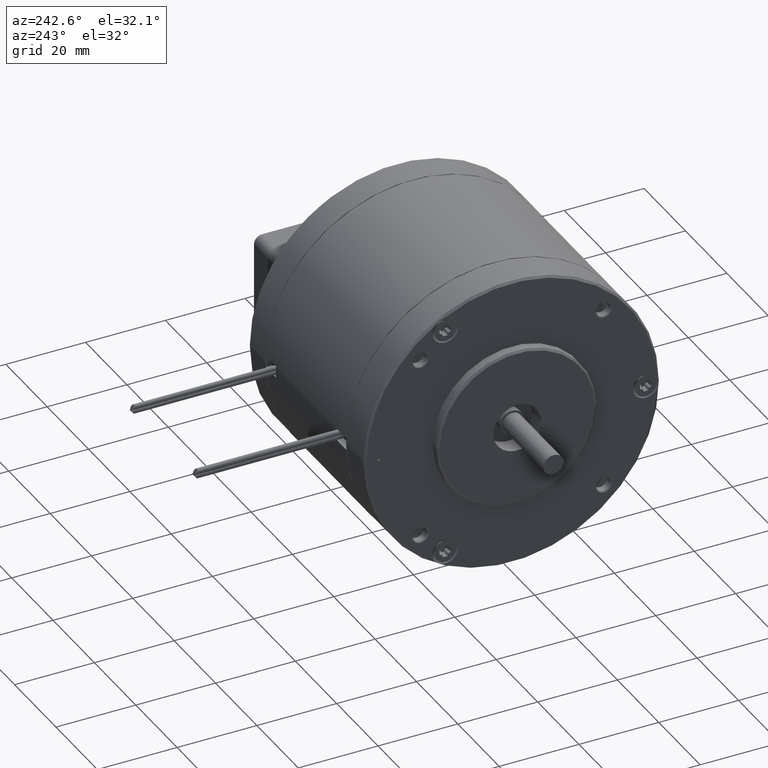
[diagram: clean part render]
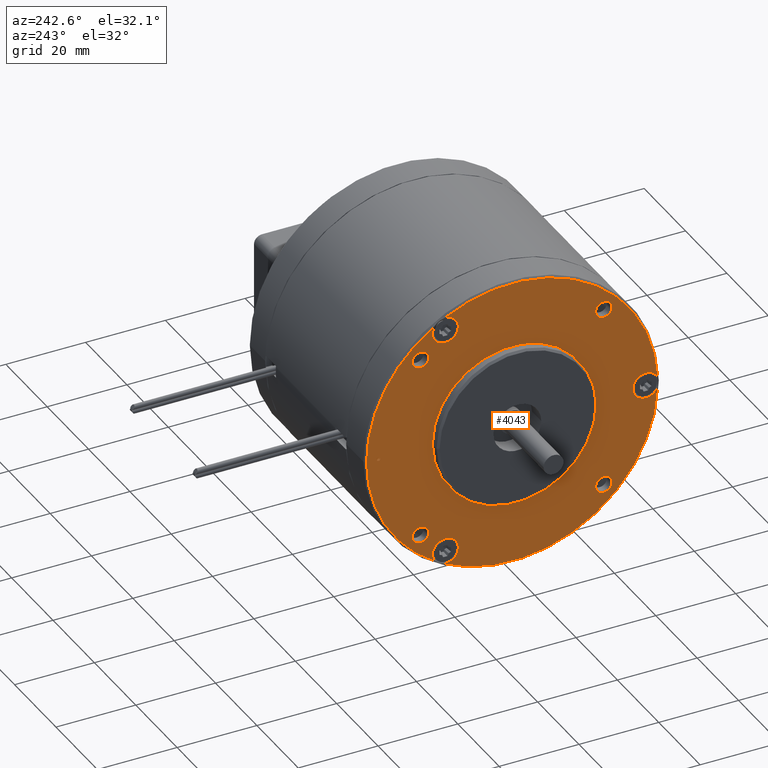
[diagram: same view with one face highlighted and labeled with its STEP entity id]
A machine part, auxiliary view. The second image highlights one B-rep face of the part: STEP entity #4043.
In plain terms, the highlighted planar face has unit normal (1, 0, 0).
Its self-contained STEP definition (entity closure, byte-faithful):
#3319=CARTESIAN_POINT('',(8.9E0,1.115616388332E-14,0.E0));
#3320=DIRECTION('',(-1.E0,0.E0,0.E0));
#3321=DIRECTION('',(0.E0,1.E0,0.E0));
#3322=AXIS2_PLACEMENT_3D('',#3319,#3320,#3321);
#3324=CARTESIAN_POINT('',(8.9E0,1.115616388332E-14,0.E0));
#3325=DIRECTION('',(1.E0,0.E0,0.E0));
#3326=DIRECTION('',(0.E0,1.E0,0.E0));
#3327=AXIS2_PLACEMENT_3D('',#3324,#3325,#3326);
#3329=CARTESIAN_POINT('',(8.9E0,-1.675E1,2.901185102678E1));
#3330=DIRECTION('',(1.E0,0.E0,0.E0));
#3331=DIRECTION('',(0.E0,5.E-1,-8.660254037844E-1));
#3332=AXIS2_PLACEMENT_3D('',#3329,#3330,#3331);
#3334=CARTESIAN_POINT('',(8.9E0,3.100031895683E-13,4.884981308351E-13));
#3335=DIRECTION('',(-1.E0,0.E0,0.E0));
#3336=DIRECTION('',(0.E0,-4.687273212516E-1,8.833429109425E-1));
#3337=AXIS2_PLACEMENT_3D('',#3334,#3335,#3336);
#3339=CARTESIAN_POINT('',(8.9E0,3.35E1,0.E0));
#3340=DIRECTION('',(1.E0,0.E0,0.E0));
#3341=DIRECTION('',(0.E0,9.158999603613E-1,4.014066050903E-1));
#3342=AXIS2_PLACEMENT_3D('',#3339,#3340,#3341);
#3344=CARTESIAN_POINT('',(8.9E0,3.35E1,0.E0));
#3345=DIRECTION('',(1.E0,0.E0,0.E0));
#3346=DIRECTION('',(0.E0,-1.E0,0.E0));
#3347=AXIS2_PLACEMENT_3D('',#3344,#3345,#3346);
#3349=CARTESIAN_POINT('',(8.9E0,-2.193511485730E-13,-2.930988785010E-14));
#3350=DIRECTION('',(-1.E0,0.E0,0.E0));
#3351=DIRECTION('',(0.E0,9.993610617549E-1,-3.574168781955E-2));
#3352=AXIS2_PLACEMENT_3D('',#3349,#3350,#3351);
#3354=CARTESIAN_POINT('',(8.9E0,-1.675E1,-2.901185102678E1));
#3355=DIRECTION('',(1.E0,0.E0,0.E0));
#3356=DIRECTION('',(0.E0,-1.103216629256E-1,-9.938959355432E-1));
#3357=AXIS2_PLACEMENT_3D('',#3354,#3355,#3356);
#3359=CARTESIAN_POINT('',(8.9E0,-1.675E1,-2.901185102678E1));
#3360=DIRECTION('',(1.E0,0.E0,0.E0));
#3361=DIRECTION('',(0.E0,5.E-1,8.660254037844E-1));
#3362=AXIS2_PLACEMENT_3D('',#3359,#3360,#3361);
#3364=CARTESIAN_POINT('',(8.9E0,-2.193511485730E-13,-2.930988785010E-14));
#3365=DIRECTION('',(-1.E0,0.E0,0.E0));
#3366=DIRECTION('',(0.E0,-5.306337405033E-1,-8.476012231229E-1));
#3367=AXIS2_PLACEMENT_3D('',#3364,#3365,#3366);
#3369=CARTESIAN_POINT('',(8.9E0,3.100031895683E-13,4.884981308351E-13));
#3370=DIRECTION('',(-1.E0,0.E0,0.E0));
#3371=DIRECTION('',(0.E0,-1.E0,-1.370513900831E-14));
#3372=AXIS2_PLACEMENT_3D('',#3369,#3370,#3371);
#3374=CARTESIAN_POINT('',(8.9E0,-1.675E1,2.901185102678E1));
#3375=DIRECTION('',(1.E0,0.E0,0.E0));
#3376=DIRECTION('',(0.E0,-8.055782974357E-1,5.924893304529E-1));
#3377=AXIS2_PLACEMENT_3D('',#3374,#3375,#3376);
#3379=CARTESIAN_POINT('',(8.9E0,2.298097038856E1,-2.298097038856E1));
#3380=DIRECTION('',(1.E0,0.E0,0.E0));
#3381=DIRECTION('',(0.E0,-1.E0,0.E0));
#3382=AXIS2_PLACEMENT_3D('',#3379,#3380,#3381);
#3384=CARTESIAN_POINT('',(8.9E0,2.298097038856E1,-2.298097038856E1));
#3385=DIRECTION('',(1.E0,0.E0,0.E0));
#3386=DIRECTION('',(0.E0,1.E0,0.E0));
#3387=AXIS2_PLACEMENT_3D('',#3384,#3385,#3386);
#3389=CARTESIAN_POINT('',(8.9E0,-2.298097038856E1,-2.298097038856E1));
#3390=DIRECTION('',(1.E0,0.E0,0.E0));
#3391=DIRECTION('',(0.E0,0.E0,1.E0));
#3392=AXIS2_PLACEMENT_3D('',#3389,#3390,#3391);
#3394=CARTESIAN_POINT('',(8.9E0,-2.298097038856E1,-2.298097038856E1));
#3395=DIRECTION('',(1.E0,0.E0,0.E0));
#3396=DIRECTION('',(0.E0,0.E0,-1.E0));
#3397=AXIS2_PLACEMENT_3D('',#3394,#3395,#3396);
#3399=CARTESIAN_POINT('',(8.9E0,-2.298097038856E1,2.298097038856E1));
#3400=DIRECTION('',(1.E0,0.E0,0.E0));
#3401=DIRECTION('',(0.E0,1.E0,0.E0));
#3402=AXIS2_PLACEMENT_3D('',#3399,#3400,#3401);
#3404=CARTESIAN_POINT('',(8.9E0,-2.298097038856E1,2.298097038856E1));
#3405=DIRECTION('',(1.E0,0.E0,0.E0));
#3406=DIRECTION('',(0.E0,-1.E0,0.E0));
#3407=AXIS2_PLACEMENT_3D('',#3404,#3405,#3406);
#3409=CARTESIAN_POINT('',(8.9E0,2.298097038856E1,2.298097038856E1));
#3410=DIRECTION('',(1.E0,0.E0,0.E0));
#3411=DIRECTION('',(0.E0,0.E0,-1.E0));
#3412=AXIS2_PLACEMENT_3D('',#3409,#3410,#3411);
#3414=CARTESIAN_POINT('',(8.9E0,2.298097038856E1,2.298097038856E1));
#3415=DIRECTION('',(1.E0,0.E0,0.E0));
#3416=DIRECTION('',(0.E0,0.E0,1.E0));
#3417=AXIS2_PLACEMENT_3D('',#3414,#3415,#3416);
#3419=CARTESIAN_POINT('',(8.9E0,-3.35E1,0.E0));
#3420=DIRECTION('',(1.E0,0.E0,0.E0));
#3421=DIRECTION('',(0.E0,-1.E0,0.E0));
#3422=AXIS2_PLACEMENT_3D('',#3419,#3420,#3421);
#3424=CARTESIAN_POINT('',(8.9E0,-3.35E1,0.E0));
#3425=DIRECTION('',(1.E0,0.E0,0.E0));
#3426=DIRECTION('',(0.E0,1.E0,0.E0));
#3427=AXIS2_PLACEMENT_3D('',#3424,#3425,#3426);
#3792=CARTESIAN_POINT('',(8.9E0,3.025E1,0.E0));
#3793=CARTESIAN_POINT('',(8.9E0,3.647667487117E1,-1.304571466544E0));
#3794=VERTEX_POINT('',#3792);
#3795=VERTEX_POINT('',#3793);
#3796=CARTESIAN_POINT('',(8.9E0,3.647667487117E1,1.304571466543E0));
#3797=VERTEX_POINT('',#3796);
#3804=CARTESIAN_POINT('',(8.9E0,-1.5125E1,-2.619726846448E1));
#3805=CARTESIAN_POINT('',(8.9E0,-1.936812946667E1,-3.093744135075E1));
#3806=VERTEX_POINT('',#3804);
#3807=VERTEX_POINT('',#3805);
#3808=CARTESIAN_POINT('',(8.9E0,-1.710854540451E1,-3.224201281729E1));
#3809=VERTEX_POINT('',#3808);
#3816=CARTESIAN_POINT('',(8.9E0,-1.5125E1,2.619726846448E1));
#3817=CARTESIAN_POINT('',(8.9E0,-1.710854540451E1,3.224201281729E1));
#3818=VERTEX_POINT('',#3816);
#3819=VERTEX_POINT('',#3817);
#3820=CARTESIAN_POINT('',(8.9E0,-1.936812946667E1,3.093744135075E1));
#3821=VERTEX_POINT('',#3820);
#3828=CARTESIAN_POINT('',(8.9E0,2.093097038856E1,-2.298097038856E1));
#3829=CARTESIAN_POINT('',(8.9E0,2.503097038856E1,-2.298097038856E1));
#3830=VERTEX_POINT('',#3828);
#3831=VERTEX_POINT('',#3829);
#3836=CARTESIAN_POINT('',(8.9E0,-2.298097038856E1,-2.093097038856E1));
#3837=CARTESIAN_POINT('',(8.9E0,-2.298097038856E1,-2.503097038856E1));
#3838=VERTEX_POINT('',#3836);
#3839=VERTEX_POINT('',#3837);
#3844=CARTESIAN_POINT('',(8.9E0,-2.093097038856E1,2.298097038856E1));
#3845=CARTESIAN_POINT('',(8.9E0,-2.503097038856E1,2.298097038856E1));
#3846=VERTEX_POINT('',#3844);
#3847=VERTEX_POINT('',#3845);
#3852=CARTESIAN_POINT('',(8.899998704969E0,-3.649999870479E1,
-1.253937830371E-9));
#3853=VERTEX_POINT('',#3852);
#3858=CARTESIAN_POINT('',(8.9E0,2.298097038856E1,2.093097038856E1));
#3859=CARTESIAN_POINT('',(8.9E0,2.298097038856E1,2.503097038856E1));
#3860=VERTEX_POINT('',#3858);
#3861=VERTEX_POINT('',#3859);
#3866=CARTESIAN_POINT('',(8.9E0,2.E1,0.E0));
#3867=CARTESIAN_POINT('',(8.9E0,-2.E1,0.E0));
#3868=VERTEX_POINT('',#3866);
#3869=VERTEX_POINT('',#3867);
#3878=CARTESIAN_POINT('',(8.9E0,-3.4E1,0.E0));
#3879=CARTESIAN_POINT('',(8.9E0,-3.3E1,0.E0));
#3880=VERTEX_POINT('',#3878);
#3881=VERTEX_POINT('',#3879);
#3983=CARTESIAN_POINT('',(8.9E0,1.115616388332E-14,0.E0));
#3984=DIRECTION('',(-1.E0,0.E0,0.E0));
#3985=DIRECTION('',(0.E0,1.E0,0.E0));
#3986=AXIS2_PLACEMENT_3D('',#3983,#3984,#3985);
#3987=PLANE('',#3986);
#3989=ORIENTED_EDGE('',*,*,#3988,.T.);
#3991=ORIENTED_EDGE('',*,*,#3990,.T.);
#3993=ORIENTED_EDGE('',*,*,#3992,.T.);
#3995=ORIENTED_EDGE('',*,*,#3994,.T.);
#3996=ORIENTED_EDGE('',*,*,#3952,.T.);
#3998=ORIENTED_EDGE('',*,*,#3997,.T.);
#3999=ORIENTED_EDGE('',*,*,#3971,.T.);
#4000=ORIENTED_EDGE('',*,*,#3961,.T.);
#4002=ORIENTED_EDGE('',*,*,#4001,.T.);
#4004=ORIENTED_EDGE('',*,*,#4003,.T.);
#4005=EDGE_LOOP('',(#3989,#3991,#3993,#3995,#3996,#3998,#3999,#4000,#4002,
#4004));
#4006=FACE_OUTER_BOUND('',#4005,.F.);
#4008=ORIENTED_EDGE('',*,*,#4007,.F.);
#4010=ORIENTED_EDGE('',*,*,#4009,.T.);
#4011=EDGE_LOOP('',(#4008,#4010));
#4012=FACE_BOUND('',#4011,.F.);
#4014=ORIENTED_EDGE('',*,*,#4013,.T.);
#4016=ORIENTED_EDGE('',*,*,#4015,.T.);
#4017=EDGE_LOOP('',(#4014,#4016));
#4018=FACE_BOUND('',#4017,.F.);
#4020=ORIENTED_EDGE('',*,*,#4019,.T.);
#4022=ORIENTED_EDGE('',*,*,#4021,.T.);
#4023=EDGE_LOOP('',(#4020,#4022));
#4024=FACE_BOUND('',#4023,.F.);
#4026=ORIENTED_EDGE('',*,*,#4025,.T.);
#4028=ORIENTED_EDGE('',*,*,#4027,.T.);
#4029=EDGE_LOOP('',(#4026,#4028));
#4030=FACE_BOUND('',#4029,.F.);
#4032=ORIENTED_EDGE('',*,*,#4031,.T.);
#4034=ORIENTED_EDGE('',*,*,#4033,.T.);
#4035=EDGE_LOOP('',(#4032,#4034));
#4036=FACE_BOUND('',#4035,.F.);
#4038=ORIENTED_EDGE('',*,*,#4037,.T.);
#4040=ORIENTED_EDGE('',*,*,#4039,.T.);
#4041=EDGE_LOOP('',(#4038,#4040));
#4042=FACE_BOUND('',#4041,.F.);
#4043=ADVANCED_FACE('',(#4006,#4012,#4018,#4024,#4030,#4036,#4042),#3987,.F.);
#3323=CIRCLE('',#3322,2.E1);
#3328=CIRCLE('',#3327,2.E1);
#3333=CIRCLE('',#3332,3.25E0);
#3338=CIRCLE('',#3337,3.649999611464E1);
#3343=CIRCLE('',#3342,3.25E0);
#3348=CIRCLE('',#3347,3.25E0);
#3353=CIRCLE('',#3352,3.649999611464E1);
#3358=CIRCLE('',#3357,3.25E0);
#3363=CIRCLE('',#3362,3.25E0);
#3368=CIRCLE('',#3367,3.649999611464E1);
#3373=CIRCLE('',#3372,3.649999611464E1);
#3378=CIRCLE('',#3377,3.25E0);
#3383=CIRCLE('',#3382,2.05E0);
#3388=CIRCLE('',#3387,2.05E0);
#3393=CIRCLE('',#3392,2.05E0);
#3398=CIRCLE('',#3397,2.05E0);
#3403=CIRCLE('',#3402,2.05E0);
#3408=CIRCLE('',#3407,2.05E0);
#3413=CIRCLE('',#3412,2.05E0);
#3418=CIRCLE('',#3417,2.05E0);
#3423=CIRCLE('',#3422,5.E-1);
#3428=CIRCLE('',#3427,5.E-1);
#3952=EDGE_CURVE('',#3795,#3809,#3353,.T.);
#3961=EDGE_CURVE('',#3807,#3853,#3368,.T.);
#3971=EDGE_CURVE('',#3806,#3807,#3363,.T.);
#3988=EDGE_CURVE('',#3818,#3819,#3333,.T.);
#3990=EDGE_CURVE('',#3819,#3797,#3338,.T.);
#3992=EDGE_CURVE('',#3797,#3794,#3343,.T.);
#3994=EDGE_CURVE('',#3794,#3795,#3348,.T.);
#3997=EDGE_CURVE('',#3809,#3806,#3358,.T.);
#4001=EDGE_CURVE('',#3853,#3821,#3373,.T.);
#4003=EDGE_CURVE('',#3821,#3818,#3378,.T.);
#4007=EDGE_CURVE('',#3868,#3869,#3323,.T.);
#4009=EDGE_CURVE('',#3868,#3869,#3328,.T.);
#4013=EDGE_CURVE('',#3830,#3831,#3383,.T.);
#4015=EDGE_CURVE('',#3831,#3830,#3388,.T.);
#4019=EDGE_CURVE('',#3838,#3839,#3393,.T.);
#4021=EDGE_CURVE('',#3839,#3838,#3398,.T.);
#4025=EDGE_CURVE('',#3846,#3847,#3403,.T.);
#4027=EDGE_CURVE('',#3847,#3846,#3408,.T.);
#4031=EDGE_CURVE('',#3860,#3861,#3413,.T.);
#4033=EDGE_CURVE('',#3861,#3860,#3418,.T.);
#4037=EDGE_CURVE('',#3880,#3881,#3423,.T.);
#4039=EDGE_CURVE('',#3881,#3880,#3428,.T.);